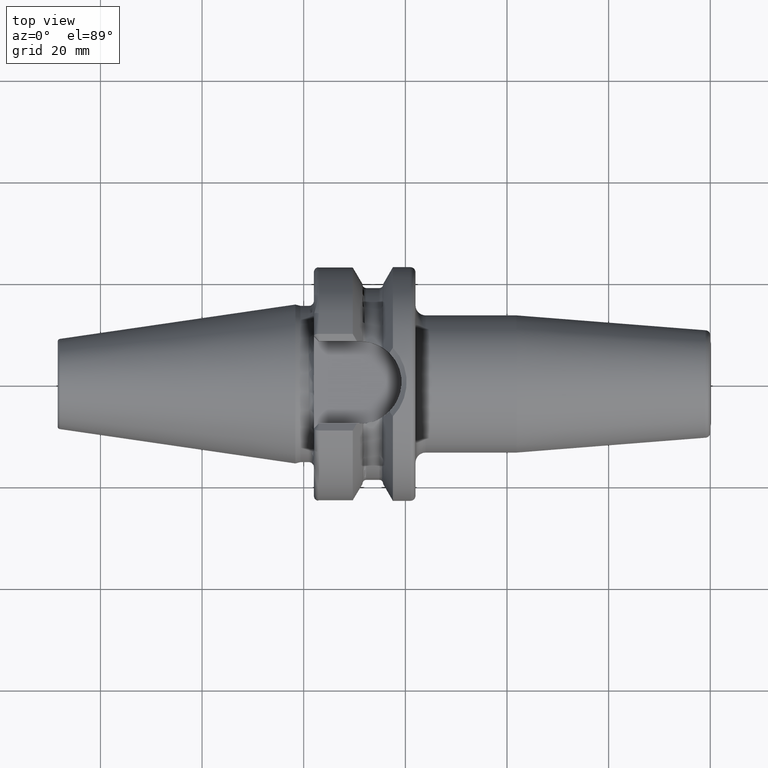
[diagram: clean part render]
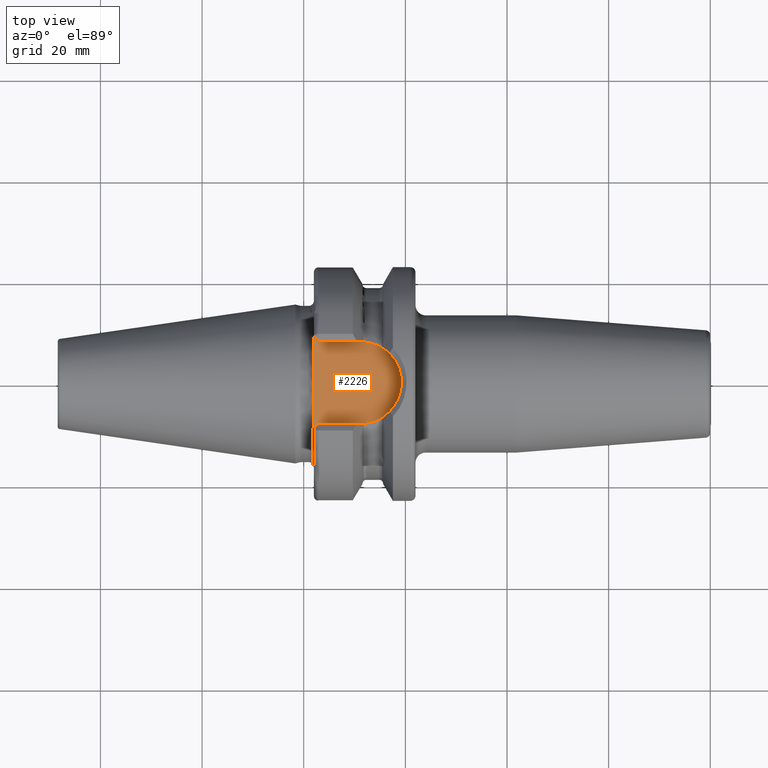
[diagram: same view with one face highlighted and labeled with its STEP entity id]
A machine part, top view. The second image highlights one B-rep face of the part: STEP entity #2226.
In plain terms, the highlighted planar face has unit normal (0, 0, 1).
Its self-contained STEP definition (entity closure, byte-faithful):
#666=DIRECTION('',(1.E0,0.E0,0.E0));
#667=VECTOR('',#666,8.155E0);
#668=CARTESIAN_POINT('',(3.E0,-8.095E0,1.615E1));
#669=LINE('',#668,#667);
#670=DIRECTION('',(0.E0,1.E0,0.E0));
#671=VECTOR('',#670,6.389796680469E0);
#672=CARTESIAN_POINT('',(2.E0,-9.095E0,1.615E1));
#673=LINE('',#672,#671);
#674=DIRECTION('',(0.E0,1.E0,0.E0));
#675=VECTOR('',#674,6.389796680469E0);
#676=CARTESIAN_POINT('',(2.E0,2.705203319531E0,1.615E1));
#677=LINE('',#676,#675);
#678=DIRECTION('',(-1.E0,0.E0,0.E0));
#679=VECTOR('',#678,8.155E0);
#680=CARTESIAN_POINT('',(1.1155E1,8.095E0,1.615E1));
#681=LINE('',#680,#679);
#682=CARTESIAN_POINT('',(1.1155E1,0.E0,1.615E1));
#683=DIRECTION('',(0.E0,0.E0,1.E0));
#684=DIRECTION('',(0.E0,-1.E0,0.E0));
#685=AXIS2_PLACEMENT_3D('',#682,#683,#684);
#691=DIRECTION('',(7.071067811865E-1,7.071067811865E-1,0.E0));
#692=VECTOR('',#691,1.414213562373E0);
#693=CARTESIAN_POINT('',(2.E0,-9.095E0,1.615E1));
#694=LINE('',#693,#692);
#700=CARTESIAN_POINT('',(2.E0,-2.705203319531E0,1.615E1));
#701=CARTESIAN_POINT('',(2.E0,-2.447526606637E0,1.615E1));
#702=CARTESIAN_POINT('',(1.994666808080E0,-1.932209003238E0,1.615E1));
#703=CARTESIAN_POINT('',(1.982373677751E0,-1.159353659083E0,1.615E1));
#704=CARTESIAN_POINT('',(1.974023153496E0,-3.864772813160E-1,1.615E1));
#705=CARTESIAN_POINT('',(1.974022947076E0,3.864455623798E-1,1.615E1));
#706=CARTESIAN_POINT('',(1.982373315251E0,1.159330607264E0,1.615E1));
#707=CARTESIAN_POINT('',(1.994666672292E0,1.932198796230E0,1.615E1));
#708=CARTESIAN_POINT('',(2.E0,2.447523240700E0,1.615E1));
#709=CARTESIAN_POINT('',(2.E0,2.705203319531E0,1.615E1));
#716=DIRECTION('',(-7.071067811865E-1,7.071067811865E-1,0.E0));
#717=VECTOR('',#716,1.414213562373E0);
#718=CARTESIAN_POINT('',(3.E0,8.095E0,1.615E1));
#719=LINE('',#718,#717);
#1294=CARTESIAN_POINT('',(1.1155E1,-8.095E0,1.615E1));
#1295=CARTESIAN_POINT('',(1.1155E1,8.095E0,1.615E1));
#1296=VERTEX_POINT('',#1294);
#1297=VERTEX_POINT('',#1295);
#1298=CARTESIAN_POINT('',(2.E0,2.705203319531E0,1.615E1));
#1299=VERTEX_POINT('',#1298);
#1300=CARTESIAN_POINT('',(2.E0,-2.705203319531E0,1.615E1));
#1301=VERTEX_POINT('',#1300);
#1331=CARTESIAN_POINT('',(3.E0,-8.095E0,1.615E1));
#1333=VERTEX_POINT('',#1331);
#1335=CARTESIAN_POINT('',(2.E0,-9.095E0,1.615E1));
#1337=VERTEX_POINT('',#1335);
#1344=CARTESIAN_POINT('',(2.E0,9.095E0,1.615E1));
#1345=VERTEX_POINT('',#1344);
#1346=CARTESIAN_POINT('',(3.E0,8.095E0,1.615E1));
#1348=VERTEX_POINT('',#1346);
#2208=CARTESIAN_POINT('',(0.E0,0.E0,1.615E1));
#2209=DIRECTION('',(0.E0,0.E0,1.E0));
#2210=DIRECTION('',(1.E0,0.E0,0.E0));
#2211=AXIS2_PLACEMENT_3D('',#2208,#2209,#2210);
#2212=PLANE('',#2211);
#2213=ORIENTED_EDGE('',*,*,#1979,.F.);
#2215=ORIENTED_EDGE('',*,*,#2214,.F.);
#2216=ORIENTED_EDGE('',*,*,#1585,.T.);
#2218=ORIENTED_EDGE('',*,*,#2217,.T.);
#2219=ORIENTED_EDGE('',*,*,#1563,.T.);
#2221=ORIENTED_EDGE('',*,*,#2220,.F.);
#2222=ORIENTED_EDGE('',*,*,#2200,.F.);
#2223=ORIENTED_EDGE('',*,*,#1948,.F.);
#2224=EDGE_LOOP('',(#2213,#2215,#2216,#2218,#2219,#2221,#2222,#2223));
#2225=FACE_OUTER_BOUND('',#2224,.F.);
#2226=ADVANCED_FACE('',(#2225),#2212,.T.);
#686=CIRCLE('',#685,8.095E0);
#710=B_SPLINE_CURVE_WITH_KNOTS('',3,(#700,#701,#702,#703,#704,#705,#706,#707,
#708,#709),.UNSPECIFIED.,.F.,.F.,(4,1,1,1,1,1,1,4),(0.E0,1.428571428571E-1,
2.857142857143E-1,4.285714285714E-1,5.714285714286E-1,7.142857142857E-1,
8.571428571429E-1,1.E0),.UNSPECIFIED.);
#1563=EDGE_CURVE('',#1299,#1345,#677,.T.);
#1585=EDGE_CURVE('',#1337,#1301,#673,.T.);
#1948=EDGE_CURVE('',#1296,#1297,#686,.T.);
#1979=EDGE_CURVE('',#1333,#1296,#669,.T.);
#2200=EDGE_CURVE('',#1297,#1348,#681,.T.);
#2214=EDGE_CURVE('',#1337,#1333,#694,.T.);
#2217=EDGE_CURVE('',#1301,#1299,#710,.T.);
#2220=EDGE_CURVE('',#1348,#1345,#719,.T.);